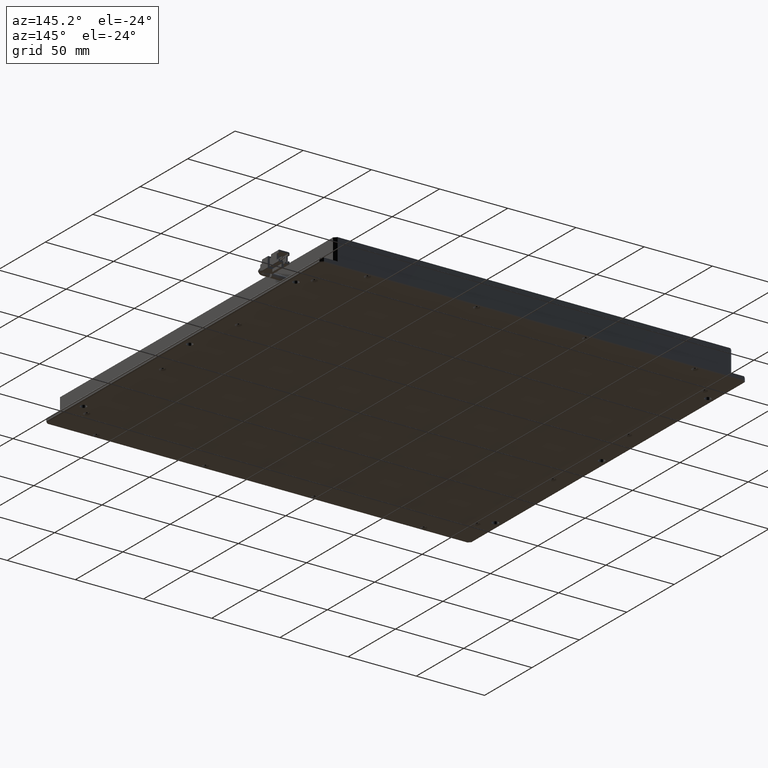
[diagram: clean part render]
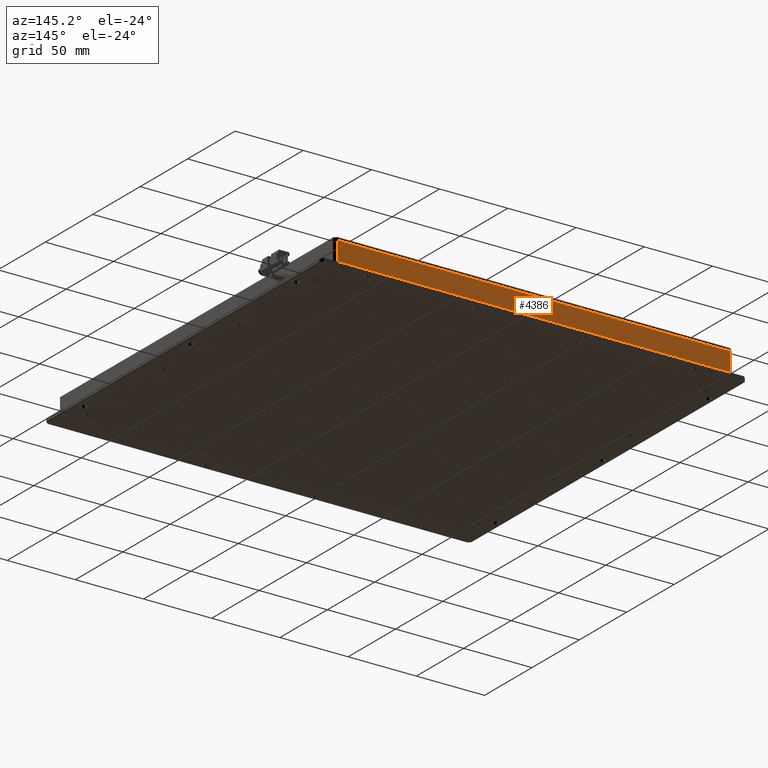
[diagram: same view with one face highlighted and labeled with its STEP entity id]
A machine part, auxiliary view. The second image highlights one B-rep face of the part: STEP entity #4386.
In plain terms, the highlighted planar face has unit normal (0, -1, 0).
Its self-contained STEP definition (entity closure, byte-faithful):
#55 = CARTESIAN_POINT ( 'NONE',  ( -113.0806771263418400, 159.2698045692266900, -7.000000000028194300 ) ) ;
#2652 = DIRECTION ( 'NONE',  ( -0.0000000000000000000, 0.0000000000000000000, 1.000000000000000000 ) ) ;
#4386 = ADVANCED_FACE ( 'NONE', ( #22984 ), #19387, .F. ) ;
#4523 = VECTOR ( 'NONE', #11268, 1000.000000000000000 ) ;
#4801 = VERTEX_POINT ( 'NONE', #13005 ) ;
#5033 = EDGE_CURVE ( 'NONE', #17211, #4801, #22602, .T. ) ;
#5752 = VERTEX_POINT ( 'NONE', #16027 ) ;
#6229 = VERTEX_POINT ( 'NONE', #6266 ) ;
#6266 = CARTESIAN_POINT ( 'NONE',  ( 176.9193228736581300, 159.2698045692266400, -7.000000000028196100 ) ) ;
#6675 = ORIENTED_EDGE ( 'NONE', *, *, #14152, .F. ) ;
#6886 = LINE ( 'NONE', #13374, #19915 ) ;
#8068 = CARTESIAN_POINT ( 'NONE',  ( -111.0806771263419000, 159.2698045692266900, -7.000000000028197000 ) ) ;
#8218 = EDGE_CURVE ( 'NONE', #5752, #4801, #6886, .T. ) ;
#8245 = CARTESIAN_POINT ( 'NONE',  ( -113.0806771263418400, 159.2698045692266900, 6.999999999971805700 ) ) ;
#9436 = AXIS2_PLACEMENT_3D ( 'NONE', #8245, #21328, #17554 ) ;
#9456 = LINE ( 'NONE', #55, #4523 ) ;
#9613 = DIRECTION ( 'NONE',  ( -1.000000000000000000, -0.0000000000000000000, 0.0000000000000000000 ) ) ;
#10161 = CARTESIAN_POINT ( 'NONE',  ( 176.9193228736580700, 159.2698045692266900, 6.999999999971805700 ) ) ;
#11268 = DIRECTION ( 'NONE',  ( 1.000000000000000000, 0.0000000000000000000, 0.0000000000000000000 ) ) ;
#13005 = CARTESIAN_POINT ( 'NONE',  ( -111.0806771263418800, 159.2698045692266900, 6.999999999971805700 ) ) ;
#13374 = CARTESIAN_POINT ( 'NONE',  ( -113.0806771263418400, 159.2698045692266900, 6.999999999971805700 ) ) ;
#14065 = DIRECTION ( 'NONE',  ( -0.0000000000000000000, 0.0000000000000000000, 1.000000000000000000 ) ) ;
#14152 = EDGE_CURVE ( 'NONE', #17211, #6229, #9456, .T. ) ;
#15423 = CARTESIAN_POINT ( 'NONE',  ( -111.0806771263419000, 159.2698045692266900, 6.999999999971805700 ) ) ;
#15547 = ORIENTED_EDGE ( 'NONE', *, *, #18474, .F. ) ;
#15561 = ORIENTED_EDGE ( 'NONE', *, *, #8218, .F. ) ;
#16027 = CARTESIAN_POINT ( 'NONE',  ( 176.9193228736581300, 159.2698045692266400, 6.999999999971805700 ) ) ;
#17211 = VERTEX_POINT ( 'NONE', #8068 ) ;
#17375 = EDGE_LOOP ( 'NONE', ( #15547, #6675, #19003, #15561 ) ) ;
#17554 = DIRECTION ( 'NONE',  ( 0.0000000000000000000, -0.0000000000000000000, -1.000000000000000000 ) ) ;
#18334 = VECTOR ( 'NONE', #14065, 1000.000000000000000 ) ;
#18474 = EDGE_CURVE ( 'NONE', #6229, #5752, #18641, .T. ) ;
#18641 = LINE ( 'NONE', #10161, #18334 ) ;
#19003 = ORIENTED_EDGE ( 'NONE', *, *, #5033, .T. ) ;
#19387 = PLANE ( 'NONE',  #9436 ) ;
#19915 = VECTOR ( 'NONE', #9613, 1000.000000000000000 ) ;
#21153 = VECTOR ( 'NONE', #2652, 1000.000000000000000 ) ;
#21328 = DIRECTION ( 'NONE',  ( 0.0000000000000000000, -1.000000000000000000, 0.0000000000000000000 ) ) ;
#22602 = LINE ( 'NONE', #15423, #21153 ) ;
#22984 = FACE_OUTER_BOUND ( 'NONE', #17375, .T. ) ;